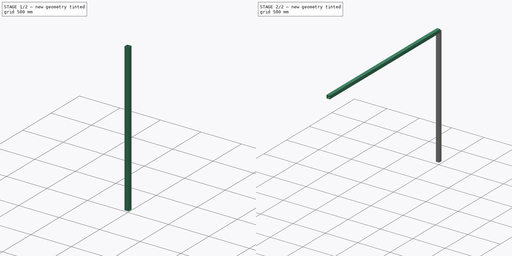
[diagram: build sequence overview — one tinted view per stage of 2, left to right]
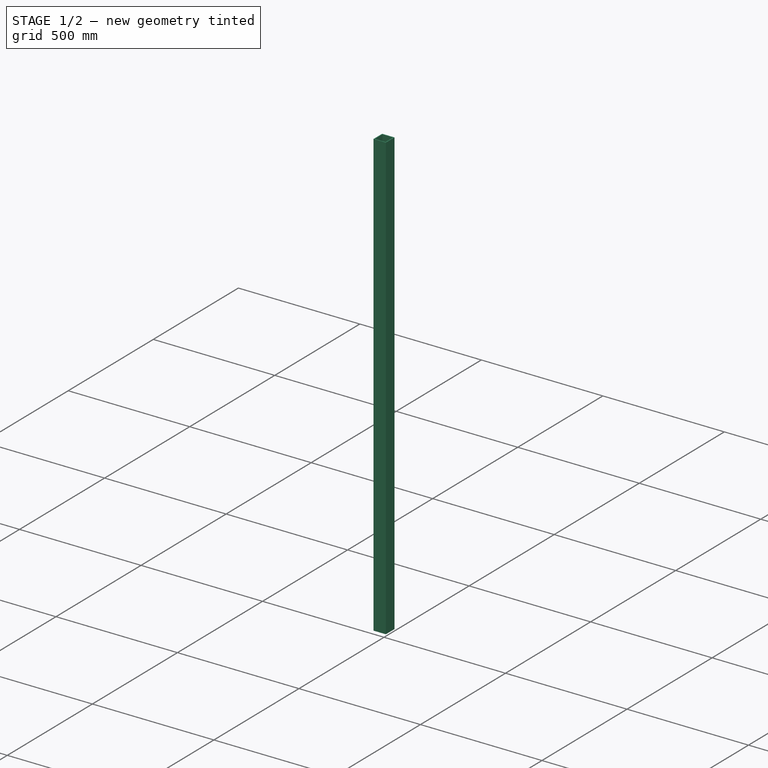
[diagram: stage 1 of 2 — iso view after this stage's code; geometry added in this stage tinted green]
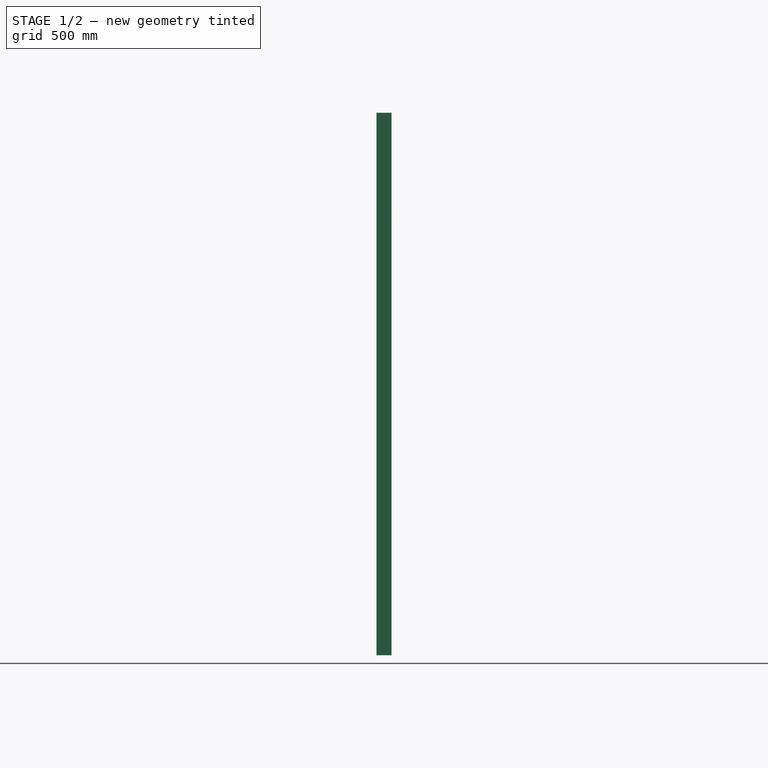
[diagram: stage 1 of 2 — front view after this stage's code; geometry added in this stage tinted green]
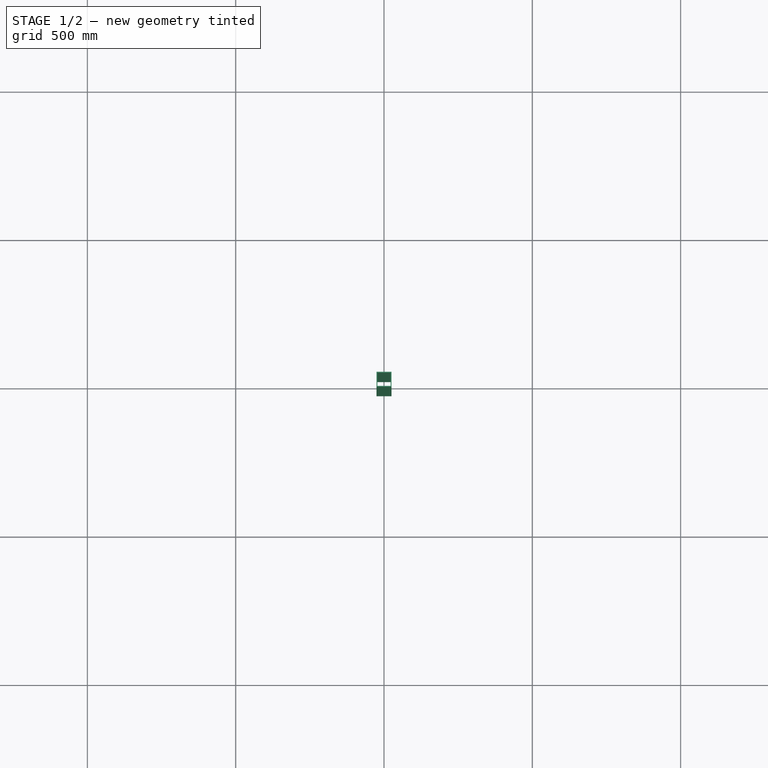
[diagram: stage 1 of 2 — top view after this stage's code; geometry added in this stage tinted green]
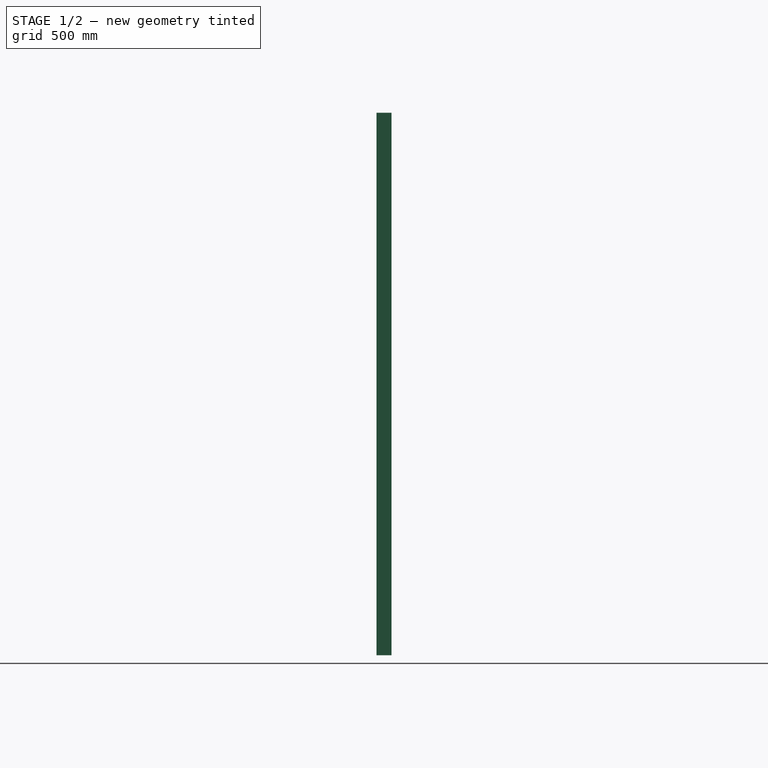
[diagram: stage 1 of 2 — right view after this stage's code; geometry added in this stage tinted green]
FCSTD DOCUMENT  (FreeCAD 1.0R39319 (Git))
Label: 2x2x0.125 tubing
License: All rights reserved
LicenseURL: https://en.wikipedia.org/wiki/All_rights_reserved
objects: PartDesign::Pad×2, PartDesign::Body×2, Sketcher::SketchObject×1, PartDesign::SubShapeBinder×1
note: 11 computed .brp shape members not serialized (recipe doc carries the construction recipe); baked Part::Feature solids carry a one-line shape summary decoded from their .brp

FEATURE [PartDesign::Body] Body  label="8' tubing"
  AllowCompound = false
  Group = -> [Sketch,Pad]
  Origin = -> Origin001
  Tip = -> Pad
FEATURE [PartDesign::SubShapeBinder] SketchBinder001
  BindCopyOnChange = 0
  BindMode = 0
  ClaimChildren = false
  Context = -> Body001 [SketchBinder001.]
  Fuse = false
  MakeFace = true
  OffsetFill = false
  OffsetIntersection = false
  OffsetJoinType = 0
  OffsetOpenResult = false
  PartialLoad = false
  Placement = pos=(0,0,0) rot=(1,0,0;1.5708rad)
  Refine = true
  Relative = true
  Support = -> [Sketch]
  _Version = 2
FEATURE [PartDesign::Pad] Pad6ft
  Direction = (0,2e-16,1)
  Length = 1828.8
  Length2 = 10
  Placement = pos=(0,0,0) rot=(1,0,0;1.5708rad)
  Profile = -> SketchBinder001
  Refine = true
  Reversed = true
  Suppressed = false
  Type = 0
FEATURE [PartDesign::Body] Body001  label="6' tubing"
  AllowCompound = false
  Group = -> [SketchBinder001,Pad6ft]
  Origin = -> Origin001
  Tip = -> Pad6ft
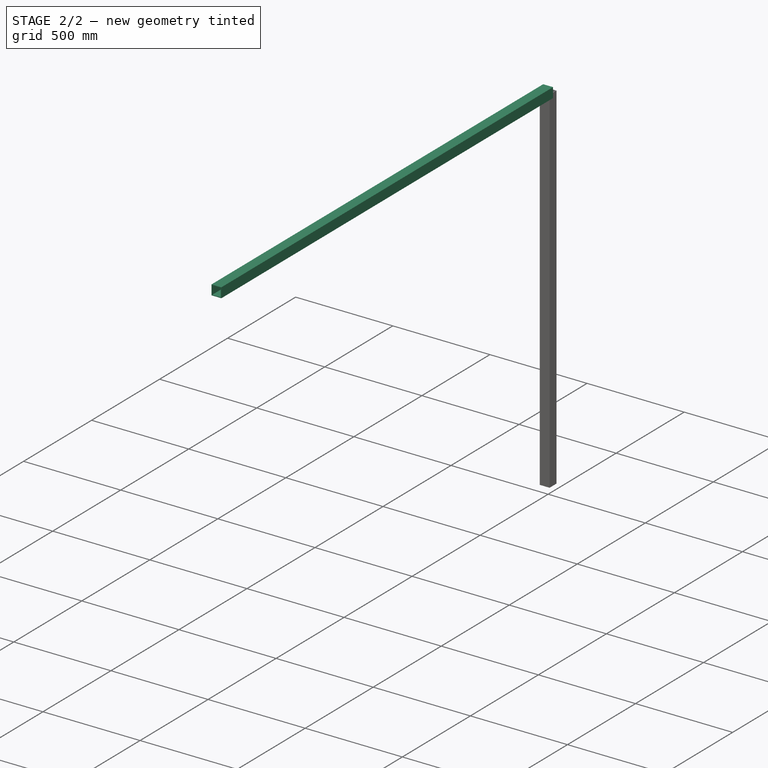
[diagram: stage 2 of 2 — iso view after this stage's code; geometry added in this stage tinted green]
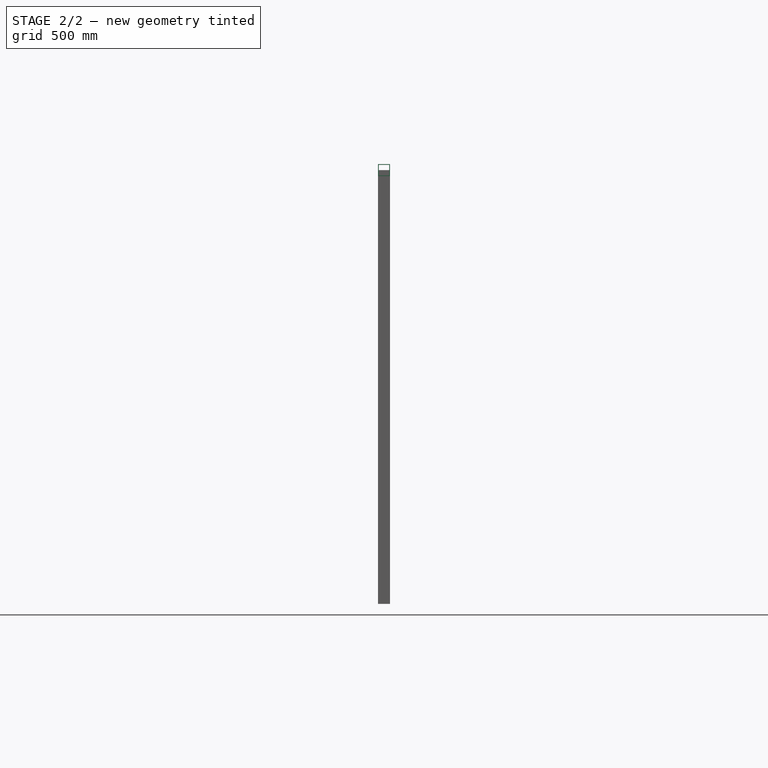
[diagram: stage 2 of 2 — front view after this stage's code; geometry added in this stage tinted green]
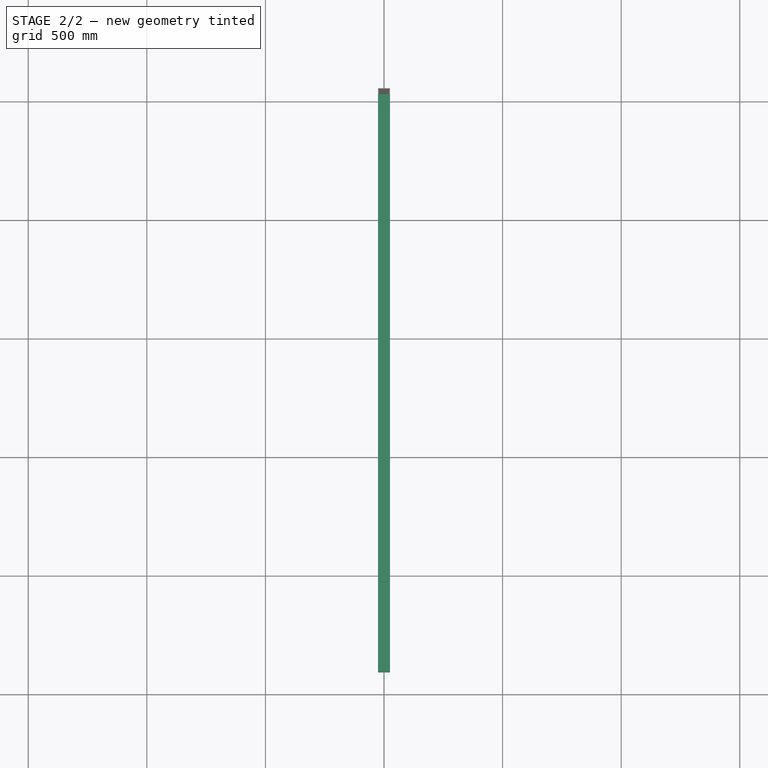
[diagram: stage 2 of 2 — top view after this stage's code; geometry added in this stage tinted green]
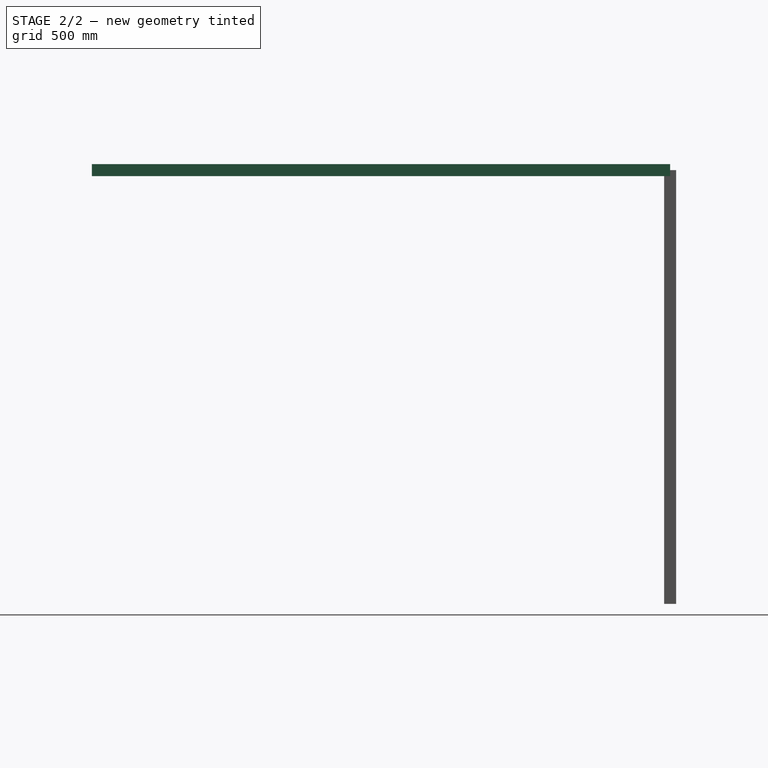
[diagram: stage 2 of 2 — right view after this stage's code; geometry added in this stage tinted green]
FEATURE [Sketcher::SketchObject] Sketch  label="2x2"
  ArcFitTolerance = 1e-06
  AttachmentSupport = -> [XZ_Plane001]
  FullyConstrained = true
  MakeInternals = false
  MapMode = 5
  Placement = pos=(0,0,0) rot=(1,0,0;1.5708rad)
  sketch-geometry (8):
    g0: LineSegment StartX=-25.4 StartY=25.4 StartZ=0 EndX=-25.4 EndY=-25.4 EndZ=0
    g1: LineSegment StartX=-25.4 StartY=-25.4 StartZ=0 EndX=25.4 EndY=-25.4 EndZ=0
    g2: LineSegment StartX=25.4 StartY=-25.4 StartZ=0 EndX=25.4 EndY=25.4 EndZ=0
    g3: LineSegment StartX=25.4 StartY=25.4 StartZ=0 EndX=-25.4 EndY=25.4 EndZ=0
    g4: LineSegment StartX=-22.225 StartY=22.225 StartZ=0 EndX=-22.225 EndY=-22.225 EndZ=0
    g5: LineSegment StartX=-22.225 StartY=-22.225 StartZ=0 EndX=22.225 EndY=-22.225 EndZ=0
    g6: LineSegment StartX=22.225 StartY=-22.225 StartZ=0 EndX=22.225 EndY=22.225 EndZ=0
    g7: LineSegment StartX=22.225 StartY=22.225 StartZ=0 EndX=-22.225 EndY=22.225 EndZ=0
  constraints (22):
    c: Coincident(g0,g1)
    c: Coincident(g1,g2)
    c: Coincident(g2,g3)
    c: Coincident(g3,g0)
    c: Vertical(g0)
    c: Vertical(g2)
    c: Horizontal(g1)
    c: Horizontal(g3)
    c: Distance(g0,g2) = 50.8
    c: Distance(g1,g3) = 50.8
    c: Symmetric(g0,g2,g-1)
    c: Coincident(g4,g5)
    c: Coincident(g5,g6)
    c: Coincident(g6,g7)
    c: Coincident(g7,g4)
    c: Vertical(g4)
    c: Vertical(g6)
    c: Horizontal(g5)
    c: Horizontal(g7)
    c: Distance(g4,g6) = 44.45
    c: Distance(g5,g7) = 44.45
    c: Symmetric(g4,g6,g-1)
FEATURE [PartDesign::Pad] Pad  label="Pad 8'"
  Direction = (0,-1,2e-16)
  Length = 2438.4
  Length2 = 10
  Placement = pos=(0,0,0) rot=(1,0,0;1.5708rad)
  Profile = -> Sketch
  ReferenceAxis = -> Sketch [N_Axis]
  Refine = true
  Suppressed = false
  Type = 0
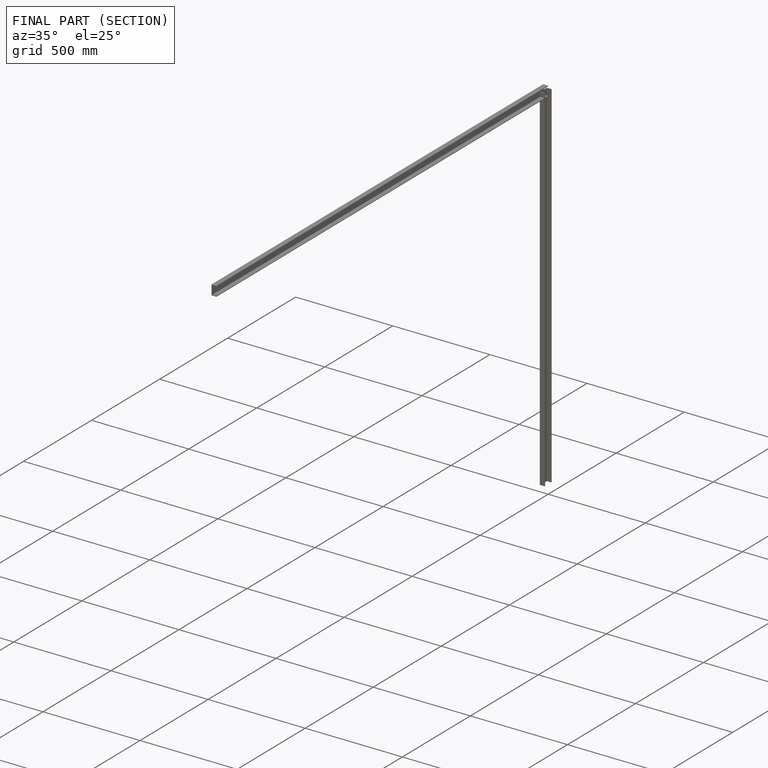
[diagram: finished part — half-section view (interior)]
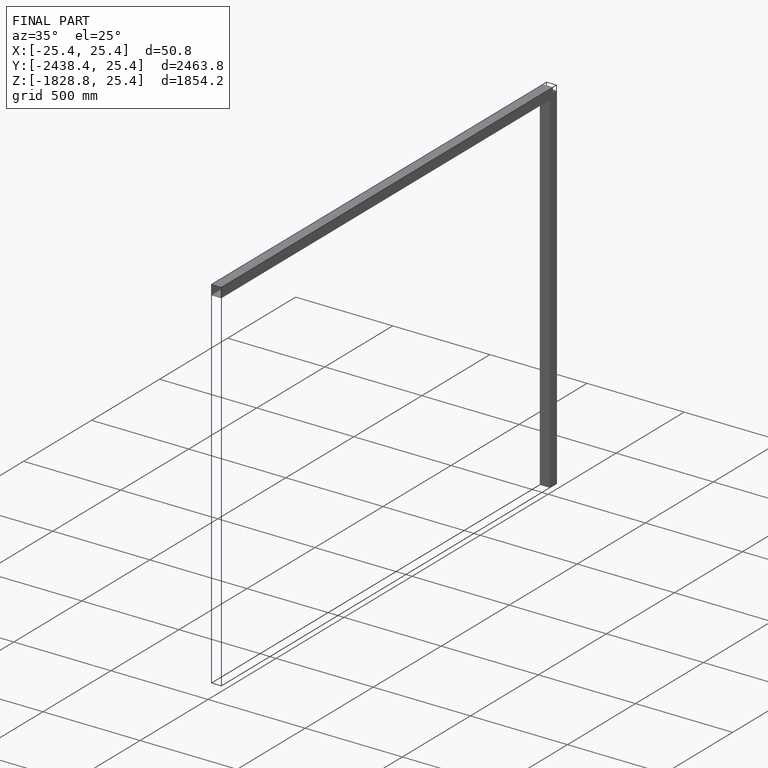
[diagram: finished part — iso view with bounding-box wireframe]
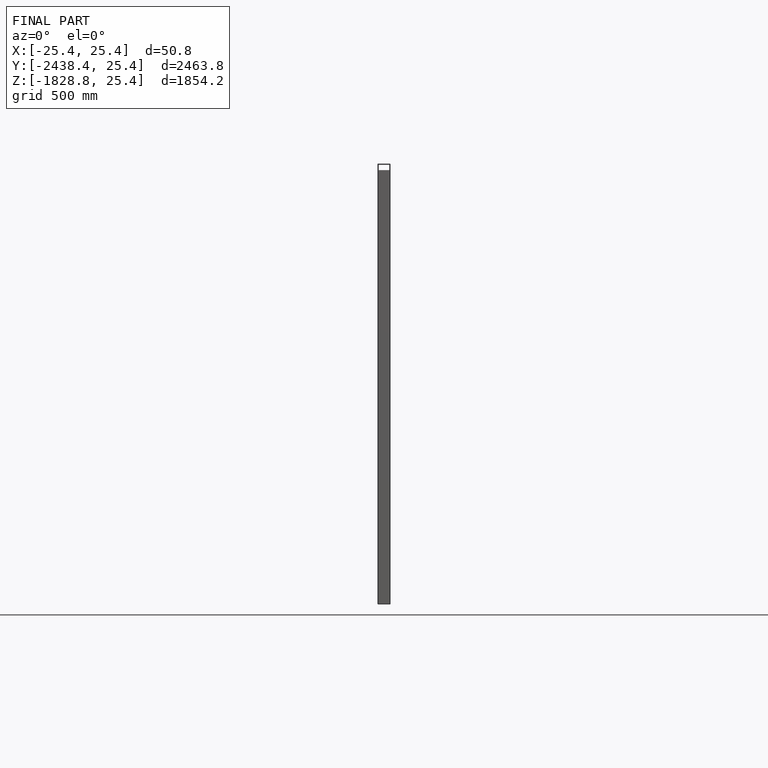
[diagram: finished part — front view with bounding-box wireframe]
